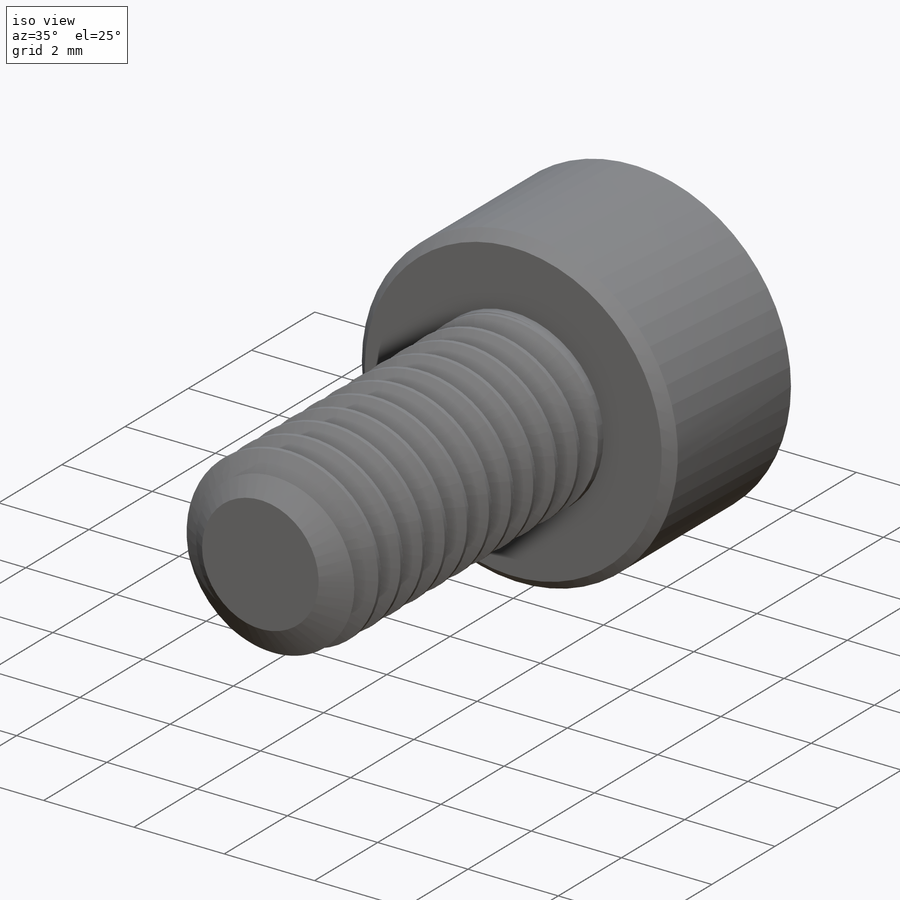
[diagram: iso view]
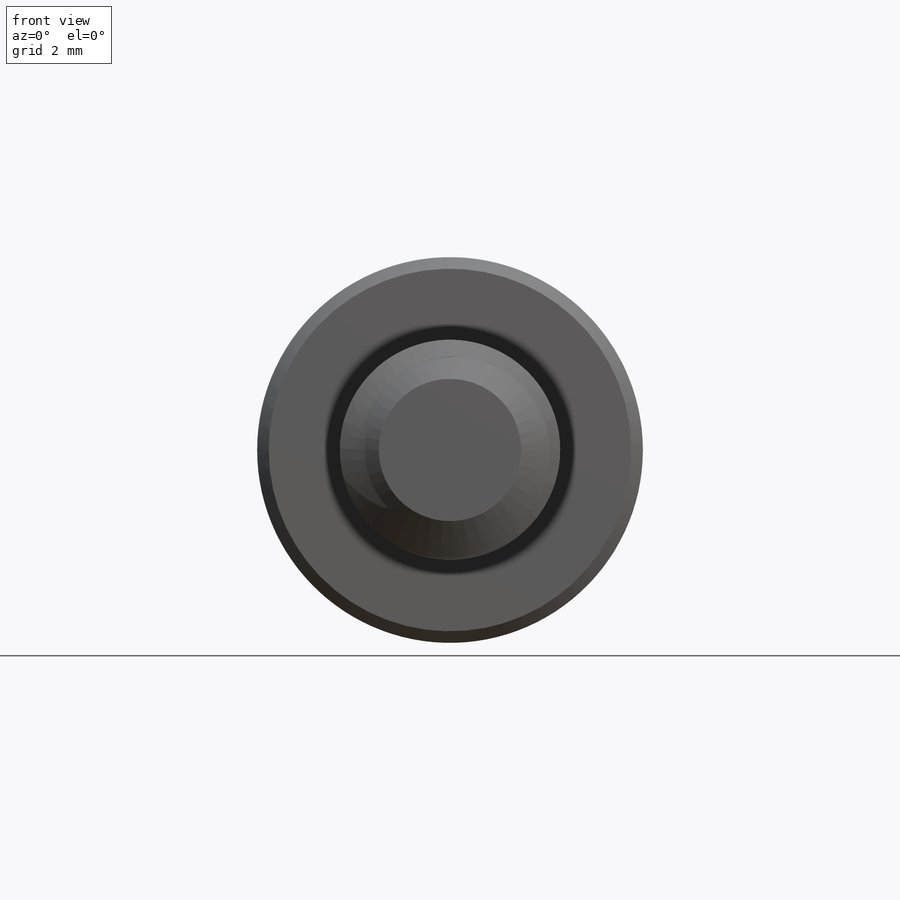
[diagram: front view]
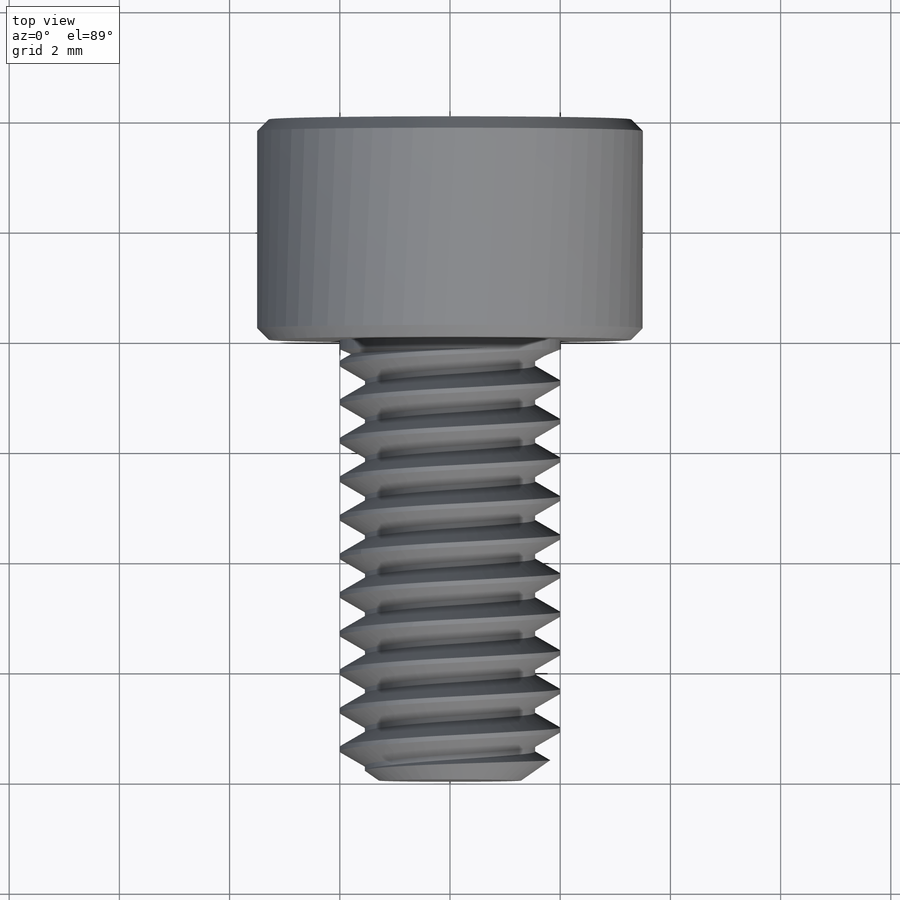
[diagram: top view]
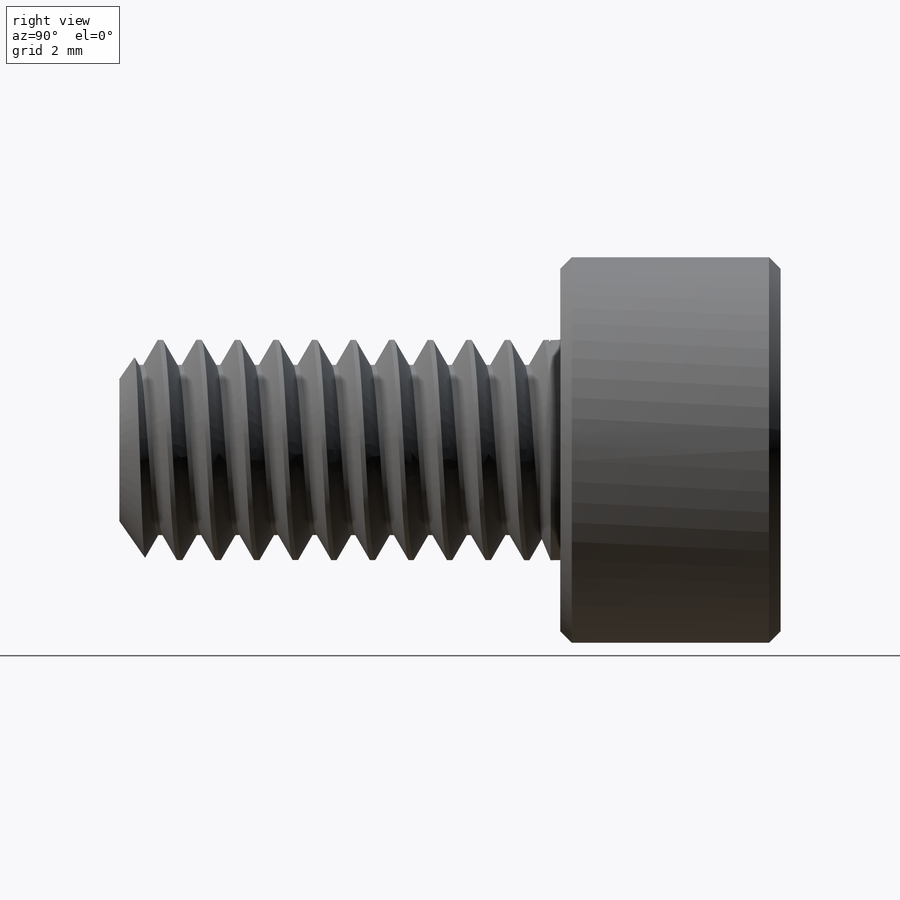
[diagram: right view]
SOLIDWORKS PART (.sldprt)
format: sldprt  version: not decoded by parser v0  size: 1,108,992 bytes
history: native  units: mm
features: sketch x10, extrude x2, revolve x2, cut_extrude x2, material x1, helix x1, sweep x1, cut_revolve x1, chamfer x1 (+15 scaffold rows collapsed)
feature tree (36):
  scaffold x15  (default folders/planes/origin — collapsed)
  material  "Material <not specified>"
  sketch  "Sketch1"  dims[OD=4.0mm]
  extrude  "Extrude1"  Depth=8mm screw length=8mm
  sketch  "Sketch2"
  helix  "Helix/Spiral1"  Pitch=8.7mm pitch=0.7mm
  sketch  "Sketch3"  dims[c1.D1=0.0875mm c1.D2=0.35mm c1.D3=~1.069256mm c2.D3=60.0deg c2.D4=3.15mm]
  sweep  "Cut-Sweep1"
  sketch  "Sketch4"  dims[c1.D1=~3.187432mm c2.D1=55.0deg c2.D2=0.254mm]
  cut_revolve  "Cut-Revolve1"  Angle=360deg
  sketch  "Sketch5"  dims[c1.Thread min=0.0001mm c1.D2=0.635mm c1.D3=0.3302mm c1.D1=0.3302mm c2.D2=0.127mm c2.D3=1.0541mm c3.D3=20.0deg]
  revolve  "partially thread"  Angle=360deg
  sketch  "Sketch6"  dims[head dia=7.0mm]
  extrude  "Extrude2"  Depth=4mm head depth=4mm
  sketch  "Sketch7"  dims[hex dia=3.0mm]
  cut_extrude  "Cut-Extrude1"  Depth=2.25mm
  sketch  "Sketch8"
  cut_extrude  "Cut-Extrude2"  [1 undecoded]
  chamfer  "Chamfer1"  Distance=0.21mm Angle=45deg
  sketch  "Sketch9"  dims[D1=3.85mm]
  sketch  "Sketch10"  dims[c1.D1=~12.278233mm c2.D1=22.5deg c2.D2=0.175mm]
  revolve  "Revolve1"  Angle=360deg
decode coverage: 16 of 20 modeling features carry decoded parameters
note: ~ marks probable driven/reference dimensions
note: 1 parameter value undecoded
note: suppression state not decoded; provenance and decode notes live in map.json
